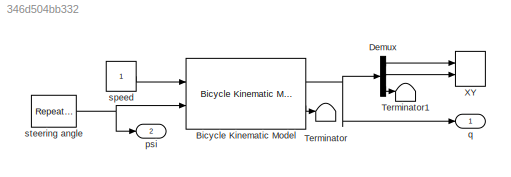
MODEL slx_346d504bb332
KIND model
CONFIG AbsTol = auto
CONFIG EnableMultiTasking = on
CONFIG FixedStep = auto
CONFIG MaxStep = auto
CONFIG MinStep = auto
CONFIG RelTol = 1e-3
CONFIG SampleTimeConstraint = Unconstrained
CONFIG SolverName = ode45
CONFIG StartTime = 0.0
CONFIG StopTime = 10.0
BLOCK [Reference] Bicycle Kinematic Model  REF=robotmobilelib/Bicycle Kinematic Model
  Ports = [2, 2]
  SourceBlock = robotmobilelib/Bicycle Kinematic Model
  SourceProductBaseCode = RO
  SourceType = Bicycle Kinematic Model
BLOCK [Demux] Demux
  Outputs = 3
  Ports = [1, 3]
BLOCK [Terminator] Terminator
BLOCK [Terminator] Terminator1
BLOCK [Record] XY
  CompatibilityTag = XY
  FileSettingsInternal = {"entries":[{"content":{"excelSettings":{"content":{},"type":"Streamout.ExcelSettings"}},"type":"Streamout.FileSettingStorage","uuid":"0d339c50-37b1-436a-8aad-213453601016"}],"packageUris":["http://schema.mathworks.com/mf0/streamout_blocks/R2020a"],"version":"1.0"}
  Layout = [1 1]
  Ports = [2]
  SignalsInternal = {"entries":[{"content":{"signals":[{"content":{"blockPath":["sl_lanechange/XY"],"channel":[],"dimensions":[1],"domain":"sl_lanechange/XY","lineColor":"#a2142f","plots":[1],"port":1,"sid":[],"signalID":9,"signalName":"XY Graph:1"},"type":"RecordBlkView.Signal","uuid":"8d1f29f8-04ba-495f-9965-6860bc0c8a6b"},{"content":{"blockPath":["sl_lanechange/XY"],"channel":[],"dimensions":[1],"domain":"sl_lanec...<+356ch>
  VisualizationBindings = {"xyplotplugin":{"info":[{"series":[{"bindingParametersList":[{"parameter":"X-Axis","signalID":9,"signalName":"XY Graph:1"},{"parameter":"Y-Axis","signalID":12,"signalName":"XY Graph:2"}],"seriesID":43401}],"subplotID":1}]}}
  st = -1
BLOCK [Outport] psi
  Port = 2
BLOCK [Outport] q
BLOCK [Constant] speed
  SampleTime = 0.02
  VectorParams1D = off
BLOCK [Reference] steering angle  REF=simulink/Sources/Repeating
Sequence
Stair
  Ports = [0, 1]
  SourceBlock = simulink/Sources/Repeating\nSequence\nStair
  SourceProductBaseCode = SL
  SourceType = Repeating Sequence Stair
NET Bicycle Kinematic Model:1 -> Demux:1, q:1
LINE Bicycle Kinematic Model:2 -> Terminator:1
LINE Demux:1 -> XY:1
LINE Demux:2 -> XY:2
LINE Demux:3 -> Terminator1:1
LINE speed:1 -> Bicycle Kinematic Model:1
NET steering angle:1 -> Bicycle Kinematic Model:2, psi:1
note: NET lines group one-source signal fan-out (src -> all destinations, sorted); 1:1 wires keep LINE
